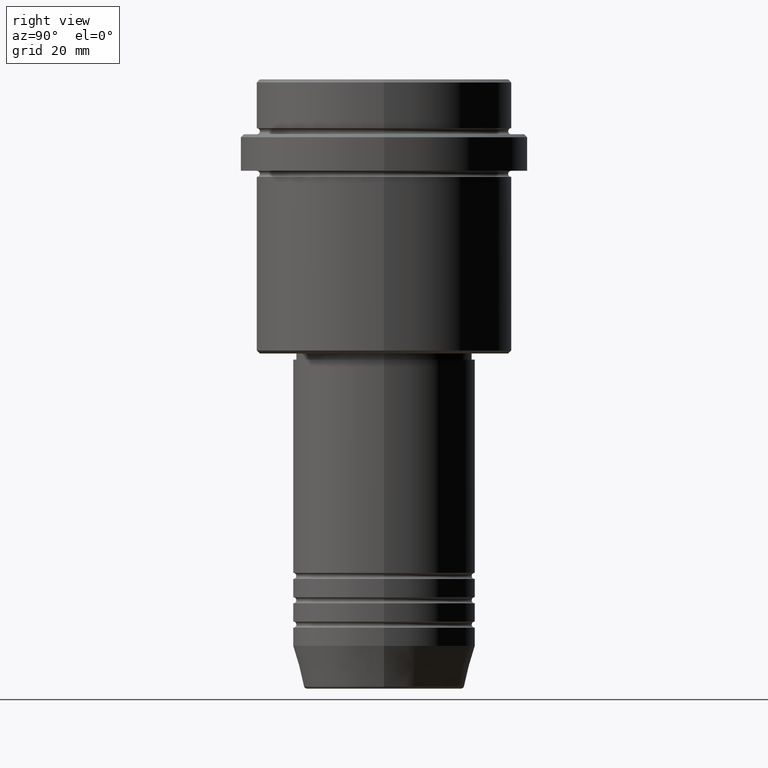
[diagram: clean part render]
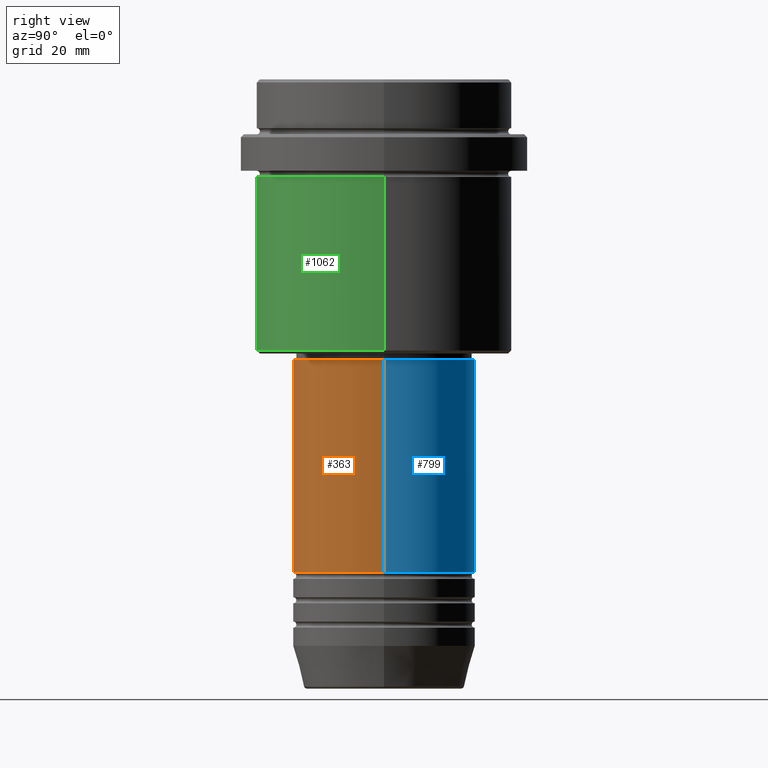
[diagram: same view with three faces highlighted in distinct colors, each labeled with its STEP entity id]
A machine part, right view with three faces highlighted in distinct colors.
Their STEP definitions:

[orange] entity #363 — the highlighted cylindrical surface (partial cylindrical patch) has radius 15 mm, axis along (-0, -0, 1).
#41 = CARTESIAN_POINT ( 'NONE',  ( 15.00000000000000000, 0.000000000000000000, -45.99999999999997868 ) ) ;
#75 = CARTESIAN_POINT ( 'NONE',  ( 0.000000000000000000, 0.000000000000000000, 0.000000000000000000 ) ) ;
#79 = CIRCLE ( 'NONE', #868, 15.00000000000000000 ) ;
#92 = DIRECTION ( 'NONE',  ( 1.000000000000000000, 0.000000000000000000, 0.000000000000000000 ) ) ;
#148 = VERTEX_POINT ( 'NONE', #743 ) ;
#153 = CARTESIAN_POINT ( 'NONE',  ( -15.00000000000000000, 1.836970198721029589E-15, 0.000000000000000000 ) ) ;
#248 = CARTESIAN_POINT ( 'NONE',  ( -15.00000000000000000, 1.836970198721029589E-15, -80.99999999999987210 ) ) ;
#276 = CARTESIAN_POINT ( 'NONE',  ( 15.00000000000000000, 0.000000000000000000, 0.000000000000000000 ) ) ;
#283 = DIRECTION ( 'NONE',  ( 1.000000000000000000, 0.000000000000000000, 0.000000000000000000 ) ) ;
#293 = DIRECTION ( 'NONE',  ( -0.000000000000000000, -0.000000000000000000, 1.000000000000000000 ) ) ;
#350 = DIRECTION ( 'NONE',  ( -0.000000000000000000, -0.000000000000000000, 1.000000000000000000 ) ) ;
#363 = ADVANCED_FACE ( 'NONE', ( #929 ), #1368, .T. ) ;
#384 = DIRECTION ( 'NONE',  ( 1.000000000000000000, 0.000000000000000000, 0.000000000000000000 ) ) ;
#512 = DIRECTION ( 'NONE',  ( -0.000000000000000000, -0.000000000000000000, 1.000000000000000000 ) ) ;
#676 = VERTEX_POINT ( 'NONE', #41 ) ;
#718 = LINE ( 'NONE', #276, #1141 ) ;
#743 = CARTESIAN_POINT ( 'NONE',  ( 15.00000000000000000, 0.000000000000000000, -80.99999999999987210 ) ) ;
#791 = ORIENTED_EDGE ( 'NONE', *, *, #1037, .F. ) ;
#804 = VECTOR ( 'NONE', #350, 1000.000000000000000 ) ;
#820 = EDGE_LOOP ( 'NONE', ( #1313, #979, #930, #791 ) ) ;
#868 = AXIS2_PLACEMENT_3D ( 'NONE', #1363, #1373, #283 ) ;
#883 = LINE ( 'NONE', #153, #804 ) ;
#885 = EDGE_CURVE ( 'NONE', #1334, #148, #79, .T. ) ;
#893 = AXIS2_PLACEMENT_3D ( 'NONE', #75, #1042, #384 ) ;
#899 = VERTEX_POINT ( 'NONE', #1267 ) ;
#926 = EDGE_CURVE ( 'NONE', #148, #676, #718, .T. ) ;
#929 = FACE_OUTER_BOUND ( 'NONE', #820, .T. ) ;
#930 = ORIENTED_EDGE ( 'NONE', *, *, #926, .T. ) ;
#979 = ORIENTED_EDGE ( 'NONE', *, *, #885, .T. ) ;
#1037 = EDGE_CURVE ( 'NONE', #899, #676, #1217, .T. ) ;
#1042 = DIRECTION ( 'NONE',  ( -0.000000000000000000, -0.000000000000000000, 1.000000000000000000 ) ) ;
#1141 = VECTOR ( 'NONE', #512, 1000.000000000000000 ) ;
#1217 = CIRCLE ( 'NONE', #1376, 15.00000000000000000 ) ;
#1220 = EDGE_CURVE ( 'NONE', #1334, #899, #883, .T. ) ;
#1267 = CARTESIAN_POINT ( 'NONE',  ( -15.00000000000000000, 1.836970198721029589E-15, -45.99999999999997868 ) ) ;
#1272 = CARTESIAN_POINT ( 'NONE',  ( 0.000000000000000000, 0.000000000000000000, -45.99999999999997868 ) ) ;
#1313 = ORIENTED_EDGE ( 'NONE', *, *, #1220, .F. ) ;
#1334 = VERTEX_POINT ( 'NONE', #248 ) ;
#1363 = CARTESIAN_POINT ( 'NONE',  ( 0.000000000000000000, 0.000000000000000000, -80.99999999999987210 ) ) ;
#1368 = CYLINDRICAL_SURFACE ( 'NONE', #893, 15.00000000000000000 ) ;
#1373 = DIRECTION ( 'NONE',  ( -0.000000000000000000, -0.000000000000000000, 1.000000000000000000 ) ) ;
#1376 = AXIS2_PLACEMENT_3D ( 'NONE', #1272, #293, #92 ) ;

[blue] entity #799 — the highlighted cylindrical surface (partial cylindrical patch) has radius 15 mm, axis along (-0, -0, 1).
#5 = EDGE_LOOP ( 'NONE', ( #869, #580, #884, #1126 ) ) ;
#41 = CARTESIAN_POINT ( 'NONE',  ( 15.00000000000000000, 0.000000000000000000, -45.99999999999997868 ) ) ;
#76 = FACE_OUTER_BOUND ( 'NONE', #5, .T. ) ;
#104 = DIRECTION ( 'NONE',  ( -0.000000000000000000, -0.000000000000000000, 1.000000000000000000 ) ) ;
#148 = VERTEX_POINT ( 'NONE', #743 ) ;
#153 = CARTESIAN_POINT ( 'NONE',  ( -15.00000000000000000, 1.836970198721029589E-15, 0.000000000000000000 ) ) ;
#176 = AXIS2_PLACEMENT_3D ( 'NONE', #317, #104, #1076 ) ;
#188 = DIRECTION ( 'NONE',  ( -0.000000000000000000, -0.000000000000000000, 1.000000000000000000 ) ) ;
#195 = CIRCLE ( 'NONE', #176, 15.00000000000000000 ) ;
#219 = EDGE_CURVE ( 'NONE', #148, #1334, #519, .T. ) ;
#248 = CARTESIAN_POINT ( 'NONE',  ( -15.00000000000000000, 1.836970198721029589E-15, -80.99999999999987210 ) ) ;
#276 = CARTESIAN_POINT ( 'NONE',  ( 15.00000000000000000, 0.000000000000000000, 0.000000000000000000 ) ) ;
#317 = CARTESIAN_POINT ( 'NONE',  ( 0.000000000000000000, 0.000000000000000000, -45.99999999999997868 ) ) ;
#346 = AXIS2_PLACEMENT_3D ( 'NONE', #713, #188, #839 ) ;
#350 = DIRECTION ( 'NONE',  ( -0.000000000000000000, -0.000000000000000000, 1.000000000000000000 ) ) ;
#512 = DIRECTION ( 'NONE',  ( -0.000000000000000000, -0.000000000000000000, 1.000000000000000000 ) ) ;
#519 = CIRCLE ( 'NONE', #891, 15.00000000000000000 ) ;
#580 = ORIENTED_EDGE ( 'NONE', *, *, #1220, .T. ) ;
#676 = VERTEX_POINT ( 'NONE', #41 ) ;
#713 = CARTESIAN_POINT ( 'NONE',  ( 0.000000000000000000, 0.000000000000000000, 0.000000000000000000 ) ) ;
#718 = LINE ( 'NONE', #276, #1141 ) ;
#743 = CARTESIAN_POINT ( 'NONE',  ( 15.00000000000000000, 0.000000000000000000, -80.99999999999987210 ) ) ;
#799 = ADVANCED_FACE ( 'NONE', ( #76 ), #1167, .T. ) ;
#804 = VECTOR ( 'NONE', #350, 1000.000000000000000 ) ;
#819 = DIRECTION ( 'NONE',  ( -0.000000000000000000, -0.000000000000000000, 1.000000000000000000 ) ) ;
#839 = DIRECTION ( 'NONE',  ( 1.000000000000000000, 0.000000000000000000, 0.000000000000000000 ) ) ;
#869 = ORIENTED_EDGE ( 'NONE', *, *, #219, .T. ) ;
#883 = LINE ( 'NONE', #153, #804 ) ;
#884 = ORIENTED_EDGE ( 'NONE', *, *, #1083, .F. ) ;
#891 = AXIS2_PLACEMENT_3D ( 'NONE', #1226, #819, #1011 ) ;
#899 = VERTEX_POINT ( 'NONE', #1267 ) ;
#926 = EDGE_CURVE ( 'NONE', #148, #676, #718, .T. ) ;
#1011 = DIRECTION ( 'NONE',  ( 1.000000000000000000, 0.000000000000000000, 0.000000000000000000 ) ) ;
#1076 = DIRECTION ( 'NONE',  ( 1.000000000000000000, 0.000000000000000000, 0.000000000000000000 ) ) ;
#1083 = EDGE_CURVE ( 'NONE', #676, #899, #195, .T. ) ;
#1126 = ORIENTED_EDGE ( 'NONE', *, *, #926, .F. ) ;
#1141 = VECTOR ( 'NONE', #512, 1000.000000000000000 ) ;
#1167 = CYLINDRICAL_SURFACE ( 'NONE', #346, 15.00000000000000000 ) ;
#1220 = EDGE_CURVE ( 'NONE', #1334, #899, #883, .T. ) ;
#1226 = CARTESIAN_POINT ( 'NONE',  ( 0.000000000000000000, 0.000000000000000000, -80.99999999999987210 ) ) ;
#1267 = CARTESIAN_POINT ( 'NONE',  ( -15.00000000000000000, 1.836970198721029589E-15, -45.99999999999997868 ) ) ;
#1334 = VERTEX_POINT ( 'NONE', #248 ) ;

[green] entity #1062 — the highlighted cylindrical surface (partial cylindrical patch) has radius 21 mm, axis along (-0, -0, 1).
#26 = VERTEX_POINT ( 'NONE', #810 ) ;
#34 = CIRCLE ( 'NONE', #642, 21.00000000000000000 ) ;
#44 = DIRECTION ( 'NONE',  ( 1.000000000000000000, 0.000000000000000000, 0.000000000000000000 ) ) ;
#83 = DIRECTION ( 'NONE',  ( -0.000000000000000000, -0.000000000000000000, 1.000000000000000000 ) ) ;
#89 = DIRECTION ( 'NONE',  ( -0.000000000000000000, -0.000000000000000000, 1.000000000000000000 ) ) ;
#102 = CARTESIAN_POINT ( 'NONE',  ( 21.00000000000000000, 0.000000000000000000, -44.50000000000001421 ) ) ;
#237 = VECTOR ( 'NONE', #675, 1000.000000000000000 ) ;
#246 = ORIENTED_EDGE ( 'NONE', *, *, #637, .T. ) ;
#265 = LINE ( 'NONE', #789, #237 ) ;
#281 = AXIS2_PLACEMENT_3D ( 'NONE', #1408, #89, #308 ) ;
#308 = DIRECTION ( 'NONE',  ( -1.000000000000000000, 0.000000000000000000, 0.000000000000000000 ) ) ;
#326 = EDGE_CURVE ( 'NONE', #796, #329, #844, .T. ) ;
#329 = VERTEX_POINT ( 'NONE', #102 ) ;
#336 = VERTEX_POINT ( 'NONE', #1282 ) ;
#517 = DIRECTION ( 'NONE',  ( 1.000000000000000000, 0.000000000000000000, 0.000000000000000000 ) ) ;
#608 = CARTESIAN_POINT ( 'NONE',  ( -21.00000000000000000, 2.571758278209441661E-15, -44.50000000000001421 ) ) ;
#637 = EDGE_CURVE ( 'NONE', #329, #336, #265, .T. ) ;
#642 = AXIS2_PLACEMENT_3D ( 'NONE', #1110, #1322, #44 ) ;
#651 = EDGE_LOOP ( 'NONE', ( #757, #769, #246, #1027 ) ) ;
#675 = DIRECTION ( 'NONE',  ( -0.000000000000000000, -0.000000000000000000, 1.000000000000000000 ) ) ;
#757 = ORIENTED_EDGE ( 'NONE', *, *, #1369, .F. ) ;
#769 = ORIENTED_EDGE ( 'NONE', *, *, #326, .T. ) ;
#789 = CARTESIAN_POINT ( 'NONE',  ( 21.00000000000000000, 0.000000000000000000, 0.000000000000000000 ) ) ;
#796 = VERTEX_POINT ( 'NONE', #608 ) ;
#810 = CARTESIAN_POINT ( 'NONE',  ( -21.00000000000000000, 2.571758278209441661E-15, -16.00000000000000355 ) ) ;
#844 = CIRCLE ( 'NONE', #281, 21.00000000000000000 ) ;
#874 = FACE_OUTER_BOUND ( 'NONE', #651, .T. ) ;
#954 = CYLINDRICAL_SURFACE ( 'NONE', #1357, 21.00000000000000000 ) ;
#966 = VECTOR ( 'NONE', #83, 1000.000000000000000 ) ;
#1027 = ORIENTED_EDGE ( 'NONE', *, *, #1271, .F. ) ;
#1034 = LINE ( 'NONE', #1366, #966 ) ;
#1062 = ADVANCED_FACE ( 'NONE', ( #874 ), #954, .T. ) ;
#1110 = CARTESIAN_POINT ( 'NONE',  ( 0.000000000000000000, 0.000000000000000000, -16.00000000000000355 ) ) ;
#1271 = EDGE_CURVE ( 'NONE', #26, #336, #34, .T. ) ;
#1282 = CARTESIAN_POINT ( 'NONE',  ( 21.00000000000000000, 0.000000000000000000, -16.00000000000000355 ) ) ;
#1295 = DIRECTION ( 'NONE',  ( -0.000000000000000000, -0.000000000000000000, 1.000000000000000000 ) ) ;
#1322 = DIRECTION ( 'NONE',  ( -0.000000000000000000, -0.000000000000000000, 1.000000000000000000 ) ) ;
#1357 = AXIS2_PLACEMENT_3D ( 'NONE', #1410, #1295, #517 ) ;
#1366 = CARTESIAN_POINT ( 'NONE',  ( -21.00000000000000000, 2.571758278209441661E-15, 0.000000000000000000 ) ) ;
#1369 = EDGE_CURVE ( 'NONE', #796, #26, #1034, .T. ) ;
#1408 = CARTESIAN_POINT ( 'NONE',  ( 0.000000000000000000, 0.000000000000000000, -44.50000000000001421 ) ) ;
#1410 = CARTESIAN_POINT ( 'NONE',  ( 0.000000000000000000, 0.000000000000000000, 0.000000000000000000 ) ) ;